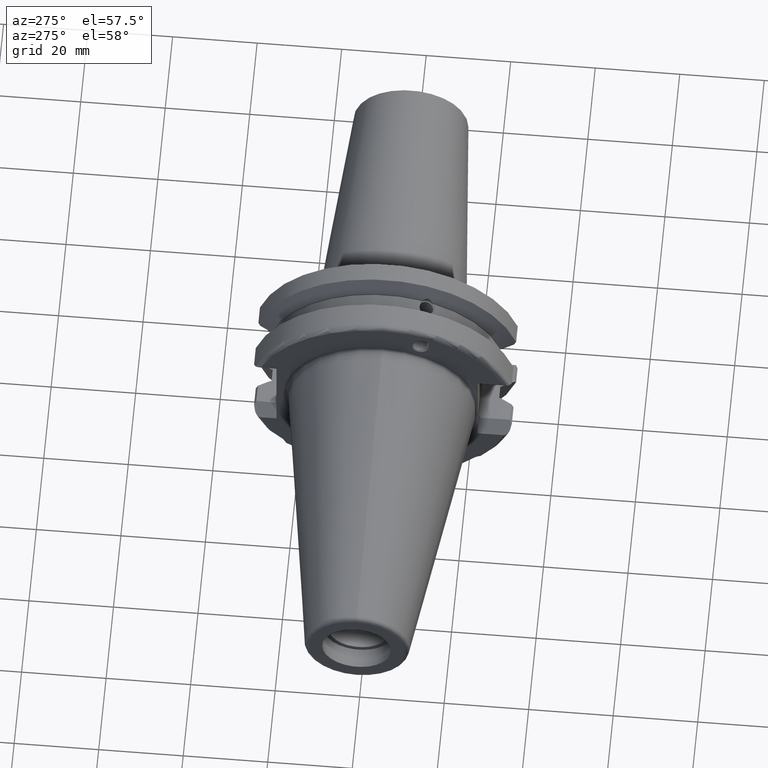
[diagram: clean part render]
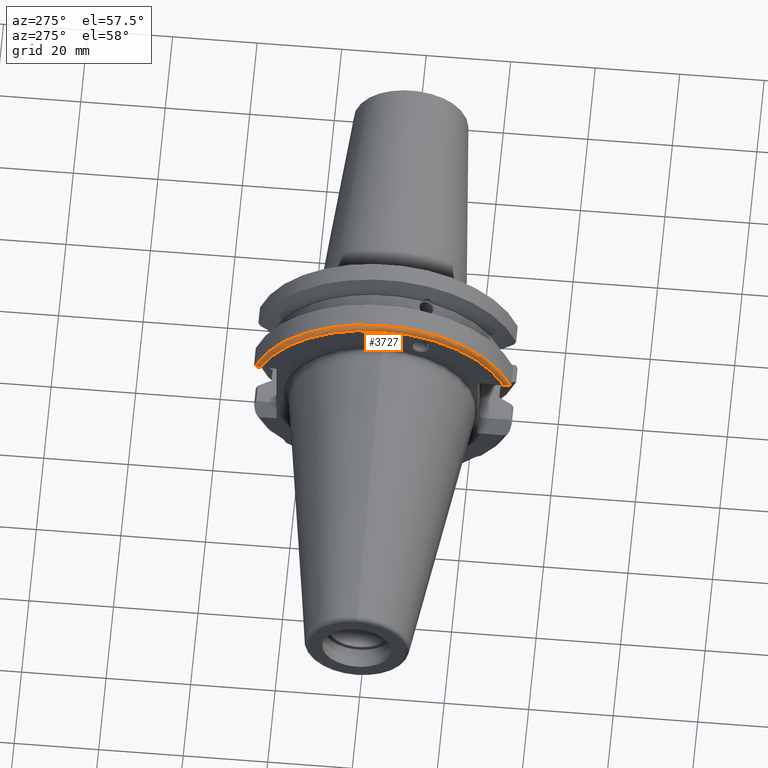
[diagram: same view with one face highlighted and labeled with its STEP entity id]
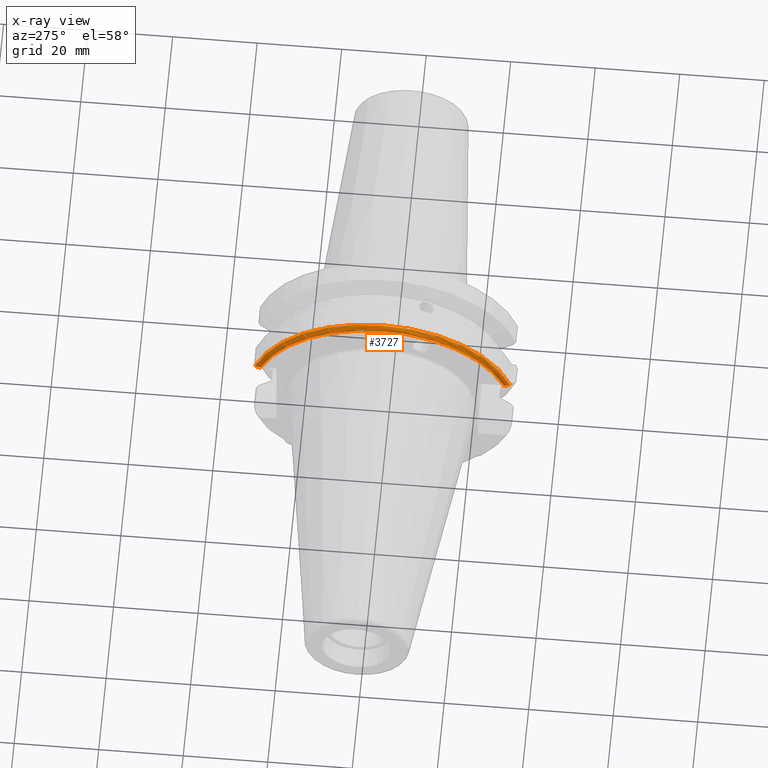
[diagram: x-ray of the same camera — body ghosted, the highlighted face saturated]
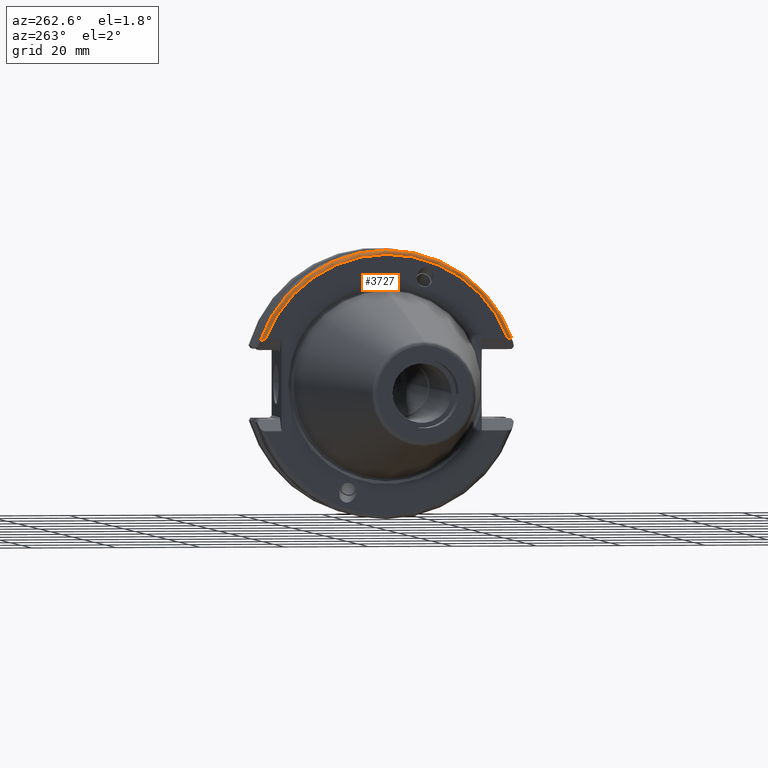
[diagram: same view with one face highlighted and labeled with its STEP entity id]
A machine part, auxiliary view. The second image highlights one B-rep face of the part: STEP entity #3727.
The next image is the same camera in x-ray: the body ghosted, the highlighted face saturated — about 0% of this face is hidden behind the body in this view.
A second angle (auxiliary view) of the same face is appended — the face is thin or edge-on in the first view.
In plain terms, the highlighted toroidal blend (fillet) surface has major radius 30.75 mm and minor (blend) radius 1 mm.
Its self-contained STEP definition (entity closure, byte-faithful):
#997=CARTESIAN_POINT('',(2.E0,-3.017035631212E1,9.89E0));
#998=CARTESIAN_POINT('',(1.890338207136E0,-3.013440860503E1,9.999661792864E0));
#999=CARTESIAN_POINT('',(1.691100429702E0,-3.003135173736E1,1.019889957030E1));
#1000=CARTESIAN_POINT('',(1.442189273476E0,-2.981665561673E1,1.044781072652E1));
#1001=CARTESIAN_POINT('',(1.251459267932E0,-2.957315383139E1,1.063854073207E1));
#1002=CARTESIAN_POINT('',(1.108046641465E0,-2.930456153677E1,1.078195335854E1));
#1003=CARTESIAN_POINT('',(1.018875042163E0,-2.902025008168E1,1.087112495784E1));
#1004=CARTESIAN_POINT('',(1.E0,-2.884392612519E1,1.089E1));
#1005=CARTESIAN_POINT('',(1.E0,-2.875709303807E1,1.089E1));
#1416=CARTESIAN_POINT('',(2.E0,0.E0,0.E0));
#1417=DIRECTION('',(1.E0,0.E0,0.E0));
#1418=DIRECTION('',(0.E0,9.502474429013E-1,3.114960629921E-1));
#1419=AXIS2_PLACEMENT_3D('',#1416,#1417,#1418);
#1421=CARTESIAN_POINT('',(1.E0,0.E0,0.E0));
#1422=DIRECTION('',(-1.E0,0.E0,0.E0));
#1423=DIRECTION('',(0.E0,-9.351900174981E-1,3.541463414634E-1));
#1424=AXIS2_PLACEMENT_3D('',#1421,#1422,#1423);
#1434=CARTESIAN_POINT('',(1.E0,2.875709303807E1,1.089E1));
#1435=CARTESIAN_POINT('',(1.E0,2.884333463608E1,1.089E1));
#1436=CARTESIAN_POINT('',(1.018659956124E0,2.901872777780E1,1.087134004388E1));
#1437=CARTESIAN_POINT('',(1.106842932048E0,2.930153800953E1,1.078315706795E1));
#1438=CARTESIAN_POINT('',(1.249902176078E0,2.957111398582E1,1.064009782392E1));
#1439=CARTESIAN_POINT('',(1.443382121680E0,2.981827496174E1,1.044661787832E1));
#1440=CARTESIAN_POINT('',(1.693910927712E0,3.003320124182E1,1.019608907229E1));
#1441=CARTESIAN_POINT('',(1.891684944533E0,3.013485007256E1,9.998315055467E0));
#1442=CARTESIAN_POINT('',(2.E0,3.017035631212E1,9.89E0));
#1849=VERTEX_POINT('',#997);
#1850=VERTEX_POINT('',#1005);
#1851=VERTEX_POINT('',#1434);
#1852=VERTEX_POINT('',#1442);
#3715=CARTESIAN_POINT('',(2.E0,0.E0,0.E0));
#3716=DIRECTION('',(1.E0,0.E0,0.E0));
#3717=DIRECTION('',(0.E0,9.999995644445E-1,9.333331978274E-4));
#3718=AXIS2_PLACEMENT_3D('',#3715,#3716,#3717);
#3719=TOROIDAL_SURFACE('',#3718,3.075E1,1.E0);
#3720=ORIENTED_EDGE('',*,*,#2961,.T.);
#3721=ORIENTED_EDGE('',*,*,#3351,.T.);
#3722=ORIENTED_EDGE('',*,*,#2874,.T.);
#3724=ORIENTED_EDGE('',*,*,#3723,.T.);
#3725=EDGE_LOOP('',(#3720,#3721,#3722,#3724));
#3726=FACE_OUTER_BOUND('',#3725,.F.);
#3727=ADVANCED_FACE('',(#3726),#3719,.T.);
#1006=B_SPLINE_CURVE_WITH_KNOTS('',3,(#997,#998,#999,#1000,#1001,#1002,#1003,
#1004,#1005),.UNSPECIFIED.,.F.,.F.,(4,1,1,1,1,1,4),(0.E0,1.666666666667E-1,
3.333333333333E-1,5.E-1,6.666666666667E-1,8.333333333333E-1,1.E0),
.UNSPECIFIED.);
#1420=CIRCLE('',#1419,3.175E1);
#1425=CIRCLE('',#1424,3.075E1);
#1443=B_SPLINE_CURVE_WITH_KNOTS('',3,(#1434,#1435,#1436,#1437,#1438,#1439,#1440,
#1441,#1442),.UNSPECIFIED.,.F.,.F.,(4,1,1,1,1,1,4),(0.E0,1.666666666667E-1,
3.333333333333E-1,5.E-1,6.666666666667E-1,8.333333333333E-1,1.E0),
.UNSPECIFIED.);
#2874=EDGE_CURVE('',#1850,#1851,#1425,.T.);
#2961=EDGE_CURVE('',#1852,#1849,#1420,.T.);
#3351=EDGE_CURVE('',#1849,#1850,#1006,.T.);
#3723=EDGE_CURVE('',#1851,#1852,#1443,.T.);